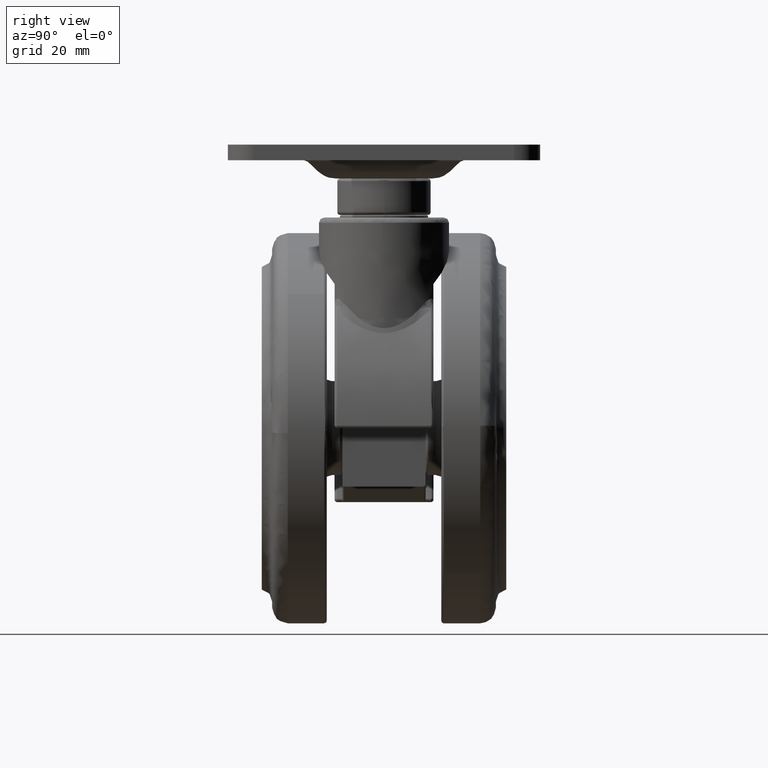
[diagram: clean part render]
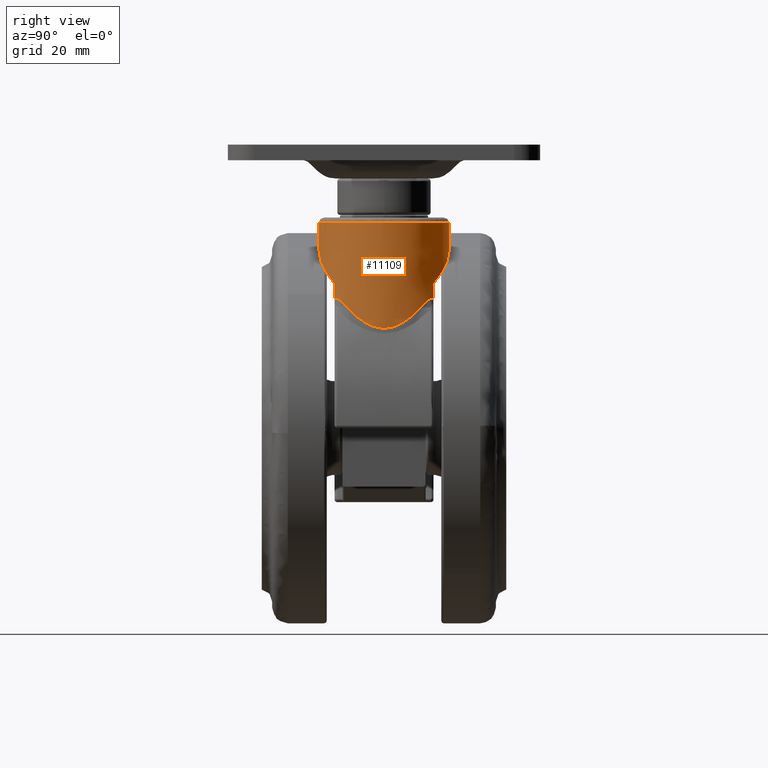
[diagram: same view with one face highlighted and labeled with its STEP entity id]
A machine part, right view. The second image highlights one B-rep face of the part: STEP entity #11109.
In plain terms, the highlighted face is a freeform B-spline surface patch.
Its self-contained STEP definition (entity closure, byte-faithful):
#10313=CARTESIAN_POINT('',(-0.210345419109388,-12.498230066879829,-0.999999999917914));
#10314=VERTEX_POINT('',#10313);
#10328=CARTESIAN_POINT('',(12.496052366040759,-0.314126193061246,-0.999999999835127));
#10329=VERTEX_POINT('',#10328);
#10330=CARTESIAN_POINT('',(12.496052366040759,-0.314126193061246,-0.999999999835127));
#10331=CARTESIAN_POINT('',(12.189723452239033,-12.499999999999973,-0.999999999836137));
#10332=CARTESIAN_POINT('',(0.0,-12.499999999999970,-0.999999999916527));
#10333=CARTESIAN_POINT('',(-0.105180156028364,-12.499999999999973,-0.999999999917221));
#10334=CARTESIAN_POINT('',(-0.210345419109388,-12.498230066879831,-0.999999999917915));
#10342=(BOUNDED_CURVE()B_SPLINE_CURVE(2,(#10330,#10331,#10332,#10333,#10334),.UNSPECIFIED.,.F.,.U.)B_SPLINE_CURVE_WITH_KNOTS((3,2,3),(0.004420108230466,0.250000000000000,0.252964611314092),.UNSPECIFIED.)CURVE()GEOMETRIC_REPRESENTATION_ITEM()RATIONAL_B_SPLINE_CURVE((0.989826157680957,0.712285260095048,1.0,0.996526741798740,0.993135858481961))REPRESENTATION_ITEM(''));
#10343=EDGE_CURVE('',#10329,#10314,#10342,.T.);
#10465=CARTESIAN_POINT('',(12.500000000000000,2.842171E-014,-1.0));
#10466=VERTEX_POINT('',#10465);
#10467=CARTESIAN_POINT('',(12.500000000000000,2.842171E-014,-1.0));
#10468=CARTESIAN_POINT('',(12.499999999999996,-0.157087901551999,-0.999999999917563));
#10469=CARTESIAN_POINT('',(12.496052366040759,-0.314126193061246,-0.999999999835127));
#10477=(BOUNDED_CURVE()B_SPLINE_CURVE(2,(#10467,#10468,#10469),.UNSPECIFIED.,.F.,.U.)B_SPLINE_CURVE_WITH_KNOTS((3,3),(0.0,0.004420108230466),.UNSPECIFIED.)CURVE()GEOMETRIC_REPRESENTATION_ITEM()RATIONAL_B_SPLINE_CURVE((1.0,0.994821521091500,0.989826157680957))REPRESENTATION_ITEM(''));
#10478=EDGE_CURVE('',#10466,#10329,#10477,.T.);
#10480=CARTESIAN_POINT('',(0.210345419109390,12.498230066879881,-0.999999999917913));
#10481=VERTEX_POINT('',#10480);
#10482=CARTESIAN_POINT('',(0.210345419109388,12.498230066879881,-0.999999999917915));
#10483=CARTESIAN_POINT('',(12.499999999999998,12.291394976655596,-0.999999999998981));
#10484=CARTESIAN_POINT('',(12.500000000000000,2.842171E-014,-1.0));
#10492=(BOUNDED_CURVE()B_SPLINE_CURVE(2,(#10482,#10483,#10484),.UNSPECIFIED.,.F.,.U.)B_SPLINE_CURVE_WITH_KNOTS((3,3),(0.752964611314092,1.0),.UNSPECIFIED.)CURVE()GEOMETRIC_REPRESENTATION_ITEM()RATIONAL_B_SPLINE_CURVE((0.993135858481961,0.710580039387808,1.0))REPRESENTATION_ITEM(''));
#10493=EDGE_CURVE('',#10481,#10466,#10492,.T.);
#10733=CARTESIAN_POINT('',(0.210345464824493,12.498232788638710,-6.561939243752726));
#10734=VERTEX_POINT('',#10733);
#10735=CARTESIAN_POINT('',(0.210345464824493,12.498232788638710,-6.561939243752726));
#10736=CARTESIAN_POINT('',(0.210345419109390,12.498230066879881,-0.999999999917913));
#10737=QUASI_UNIFORM_CURVE('',1,(#10735,#10736),.UNSPECIFIED.,.F.,.U.);
#10738=EDGE_CURVE('',#10734,#10481,#10737,.T.);
#10868=CARTESIAN_POINT('',(-0.210345464165295,-12.498232745912050,-6.314921270458395));
#10869=VERTEX_POINT('',#10868);
#10897=CARTESIAN_POINT('',(-0.210345464165295,-12.498232745912050,-6.314921270458395));
#10898=CARTESIAN_POINT('',(-0.210345419109388,-12.498230066879829,-0.999999999917914));
#10899=QUASI_UNIFORM_CURVE('',1,(#10897,#10898),.UNSPECIFIED.,.F.,.U.);
#10900=EDGE_CURVE('',#10869,#10314,#10899,.T.);
#10907=CARTESIAN_POINT('',(-0.210345418988104,-12.498230066881870,-21.771231334627650));
#10908=CARTESIAN_POINT('',(12.287884647893792,-12.708575485869972,-21.771231334627647));
#10909=CARTESIAN_POINT('',(12.498230066881900,-0.210345418988075,-21.771231334627650));
#10910=CARTESIAN_POINT('',(12.708575485869998,12.287884647893820,-21.771231334627647));
#10911=CARTESIAN_POINT('',(0.210345418988104,12.498230066881920,-21.771231334627650));
#10912=CARTESIAN_POINT('',(-0.210345418988104,-12.498230066881870,-0.480719216465309));
#10913=CARTESIAN_POINT('',(12.287884647893792,-12.708575485869972,-0.480719216465309));
#10914=CARTESIAN_POINT('',(12.498230066881900,-0.210345418988075,-0.480719216465310));
#10915=CARTESIAN_POINT('',(12.708575485869998,12.287884647893820,-0.480719216465312));
#10916=CARTESIAN_POINT('',(0.210345418988104,12.498230066881920,-0.480719216465312));
#10924=(BOUNDED_SURFACE()B_SPLINE_SURFACE(2,1,((#10907,#10912),(#10908,#10913),(#10909,#10914),(#10910,#10915),(#10911,#10916)),.UNSPECIFIED.,.F.,.F.,.U.)B_SPLINE_SURFACE_WITH_KNOTS((3,2,3),(2,2),(0.0,20.710678118654752,41.421356237309503),(0.0,21.290512118162340),.UNSPECIFIED.)GEOMETRIC_REPRESENTATION_ITEM()RATIONAL_B_SPLINE_SURFACE(((1.0,1.0),(0.707106781186548,0.707106781186548),(1.0,1.0),(0.707106781186548,0.707106781186548),(1.0,1.0)))REPRESENTATION_ITEM('')SURFACE());
#10925=ORIENTED_EDGE('',*,*,#10493,.T.);
#10926=ORIENTED_EDGE('',*,*,#10478,.T.);
#10927=ORIENTED_EDGE('',*,*,#10343,.T.);
#10928=ORIENTED_EDGE('',*,*,#10900,.F.);
#10929=CARTESIAN_POINT('',(8.124038404636170,-9.499999999999840,-12.763950104340299));
#10930=VERTEX_POINT('',#10929);
#10931=CARTESIAN_POINT('',(-0.210345464165295,-12.498232745912050,-6.314921270458395));
#10932=CARTESIAN_POINT('',(0.046688669925738,-12.502563223112819,-6.463717266949617));
#10933=CARTESIAN_POINT('',(0.301376004855072,-12.498917490826550,-6.615025582353200));
#10934=CARTESIAN_POINT('',(1.279961564212694,-12.455522032014001,-7.211317381852880));
#10935=CARTESIAN_POINT('',(1.987225241460234,-12.361174337843259,-7.674395283909064));
#10936=CARTESIAN_POINT('',(2.848662870504341,-12.172353313825489,-8.278378668188394));
#10937=CARTESIAN_POINT('',(3.020024907418457,-12.130961616131099,-8.400585281640833));
#10938=CARTESIAN_POINT('',(3.359527115123265,-12.041360412231249,-8.646798200261666));
#10939=CARTESIAN_POINT('',(3.527276741180372,-11.993265002384881,-8.770515328244699));
#10940=CARTESIAN_POINT('',(4.024726760755482,-11.839427331190590,-9.143433004633954));
#10941=CARTESIAN_POINT('',(4.348636310451784,-11.724154875031569,-9.394401833612065));
#10942=CARTESIAN_POINT('',(5.298514053780559,-11.342029424662220,-10.153789478325811));
#10943=CARTESIAN_POINT('',(5.902730168529613,-11.039182328275510,-10.668742591258241));
#10944=CARTESIAN_POINT('',(6.624379925392161,-10.601701070366500,-11.320722621267240));
#10945=CARTESIAN_POINT('',(6.767020840263738,-10.511233450999731,-11.451528870959860));
#10946=CARTESIAN_POINT('',(7.048960003187420,-10.324280356470430,-11.713877609950700));
#10947=CARTESIAN_POINT('',(7.188300769051740,-10.227755211578730,-11.845464961123460));
#10948=CARTESIAN_POINT('',(7.599767507270009,-9.930162991382993,-12.239654275979181));
#10949=CARTESIAN_POINT('',(7.865886326719730,-9.720761732060828,-12.502186838535920));
#10950=CARTESIAN_POINT('',(8.124038404636170,-9.499999999999840,-12.763950104340299));
#10951=B_SPLINE_CURVE_WITH_KNOTS('',3,(#10931,#10932,#10933,#10934,#10935,#10936,#10937,#10938,#10939,#10940,#10941,#10942,#10943,#10944,#10945,#10946,#10947,#10948,#10949,#10950),.UNSPECIFIED.,.F.,.U.,(4,2,2,2,2,2,2,2,2,4),(0.456554544227998,0.500000000000001,0.625000000000001,0.656250000000001,0.687500000000001,0.750000000000001,0.875000000000000,0.906250000000000,0.937500000000000,1.0),.UNSPECIFIED.);
#10952=EDGE_CURVE('',#10869,#10930,#10951,.T.);
#10953=ORIENTED_EDGE('',*,*,#10952,.T.);
#10954=CARTESIAN_POINT('',(8.124038404636160,-9.499999999999801,-15.712838451109050));
#10955=VERTEX_POINT('',#10954);
#10956=CARTESIAN_POINT('',(8.124038404636170,-9.499999999999840,-12.763950104340299));
#10957=CARTESIAN_POINT('',(8.124038404636160,-9.499999999999801,-15.712838451109050));
#10958=QUASI_UNIFORM_CURVE('',1,(#10956,#10957),.UNSPECIFIED.,.F.,.U.);
#10959=EDGE_CURVE('',#10930,#10955,#10958,.T.);
#10960=ORIENTED_EDGE('',*,*,#10959,.T.);
#10961=CARTESIAN_POINT('',(9.800704311122601,-7.758620689654999,-16.494848053722400));
#10962=VERTEX_POINT('',#10961);
#10963=CARTESIAN_POINT('',(8.124038404636160,-9.499999999999801,-15.712838451109050));
#10964=CARTESIAN_POINT('',(8.200056996387302,-9.434991793804793,-15.657000079892329));
#10965=CARTESIAN_POINT('',(8.280236414711153,-9.364840259450533,-15.619856044924051));
#10966=CARTESIAN_POINT('',(8.384300480074323,-9.271153634815811,-15.593045069625070));
#10967=CARTESIAN_POINT('',(8.405245227154264,-9.252169682244603,-15.588700124077491));
#10968=CARTESIAN_POINT('',(8.446798399380818,-9.214249180365350,-15.581996168592941));
#10969=CARTESIAN_POINT('',(8.467492043779751,-9.195236099098793,-15.579614039939081));
#10970=CARTESIAN_POINT('',(8.529329856914192,-9.138035123073539,-15.575120671623470));
#10971=CARTESIAN_POINT('',(8.570231152781400,-9.099685335955268,-15.575650790731521));
#10972=CARTESIAN_POINT('',(8.651408704842456,-9.022541917180572,-15.582757370607361));
#10973=CARTESIAN_POINT('',(8.691684860706065,-8.983748355229512,-15.589338693499940));
#10974=CARTESIAN_POINT('',(8.771627840160782,-8.905709700053796,-15.607875553175500));
#10975=CARTESIAN_POINT('',(8.811253347426510,-8.866499001752963,-15.619852877914720));
#10976=CARTESIAN_POINT('',(8.927105973631964,-8.750356526338241,-15.662167106236870));
#10977=CARTESIAN_POINT('',(9.001149884090731,-8.674105196032567,-15.698975363985470));
#10978=CARTESIAN_POINT('',(9.108382891154648,-8.560961462069976,-15.764151556417641));
#10979=CARTESIAN_POINT('',(9.143482034807141,-8.523457020210431,-15.787559302776231));
#10980=CARTESIAN_POINT('',(9.212492856972682,-8.448819956446142,-15.837440999139570));
#10981=CARTESIAN_POINT('',(9.246327405067838,-8.411768487184277,-15.863869453558600));
#10982=CARTESIAN_POINT('',(9.345200407928450,-8.302223051113186,-15.946506472107570));
#10983=CARTESIAN_POINT('',(9.407971066648200,-8.230952259817251,-16.006288610242098));
#10984=CARTESIAN_POINT('',(9.588495491993044,-8.021516875077420,-16.197272233662112));
#10985=CARTESIAN_POINT('',(9.698539738479676,-7.887675170805309,-16.339983511442270));
#10986=CARTESIAN_POINT('',(9.800704311122601,-7.758620689654991,-16.494848053722400));
#10987=B_SPLINE_CURVE_WITH_KNOTS('',3,(#10963,#10964,#10965,#10966,#10967,#10968,#10969,#10970,#10971,#10972,#10973,#10974,#10975,#10976,#10977,#10978,#10979,#10980,#10981,#10982,#10983,#10984,#10985,#10986),.UNSPECIFIED.,.F.,.U.,(4,2,2,2,2,2,2,2,2,2,2,4),(0.0,0.124999999999995,0.156249999999994,0.187499999999994,0.249999999999994,0.312499999999993,0.374999999999992,0.499999999999993,0.562499999999993,0.624999999999993,0.749999999999996,1.0),.UNSPECIFIED.);
#10988=EDGE_CURVE('',#10955,#10962,#10987,.T.);
#10989=ORIENTED_EDGE('',*,*,#10988,.T.);
#10990=CARTESIAN_POINT('',(9.800704311122360,7.758620689655350,-16.494848053722048));
#10991=VERTEX_POINT('',#10990);
#10992=CARTESIAN_POINT('',(9.800704311122601,-7.758620689654999,-16.494848053722400));
#10993=CARTESIAN_POINT('',(9.986707087611308,-7.523661631037242,-16.776797403664212));
#10994=CARTESIAN_POINT('',(10.165844132897430,-7.279997950284919,-17.056252337182549));
#10995=CARTESIAN_POINT('',(10.508322965032709,-6.776275197561249,-17.604786231683889));
#10996=CARTESIAN_POINT('',(10.671910093621010,-6.515949520881597,-17.874231843661260));
#10997=CARTESIAN_POINT('',(10.983571075311540,-5.975653072140882,-18.400619150000651));
#10998=CARTESIAN_POINT('',(11.131653040221250,-5.695706632649594,-18.657582823657670));
#10999=CARTESIAN_POINT('',(11.411517158175970,-5.111951643133098,-19.154834979763400));
#11000=CARTESIAN_POINT('',(11.543317238524381,-4.808192548108898,-19.395167292103832));
#11001=CARTESIAN_POINT('',(11.696795247947939,-4.409340818720976,-19.681139563171779));
#11002=CARTESIAN_POINT('',(11.726924014512040,-4.328604081846671,-19.737604143342349));
#11003=CARTESIAN_POINT('',(11.786005234840619,-4.165049908924077,-19.848936044424960));
#11004=CARTESIAN_POINT('',(11.814957402350920,-4.082221713592210,-19.903804016465990));
#11005=CARTESIAN_POINT('',(11.899458607560630,-3.831957071799351,-20.064789427935182));
#11006=CARTESIAN_POINT('',(11.952836298374001,-3.662256524070719,-20.167634681594329));
#11007=CARTESIAN_POINT('',(12.103619622892150,-3.143575308409699,-20.460871230133790));
#11008=CARTESIAN_POINT('',(12.191760858152691,-2.785120383891056,-20.636140376215149));
#11009=CARTESIAN_POINT('',(12.302249911155640,-2.222865092005873,-20.858650156466432));
#11010=CARTESIAN_POINT('',(12.335440511342650,-2.031327839554900,-20.926048373057011));
#11011=CARTESIAN_POINT('',(12.379141350123019,-1.736866656894137,-21.015261324131199));
#11012=CARTESIAN_POINT('',(12.392705884098280,-1.637346349929151,-21.043042960965661));
#11013=CARTESIAN_POINT('',(12.417387050702670,-1.438249294257478,-21.093712265269890));
#11014=CARTESIAN_POINT('',(12.428548754780611,-1.338397423100053,-21.116691594596549));
#11015=CARTESIAN_POINT('',(12.478403538779681,-0.837588274322451,-21.219521246843630));
#11016=CARTESIAN_POINT('',(12.499292307738219,-0.431981676063675,-21.263143559386961));
#11017=CARTESIAN_POINT('',(12.500154898459179,0.081760547932292,-21.264938210031939));
#11018=CARTESIAN_POINT('',(12.499061373036181,0.184845676848764,-21.262662377708129));
#11019=CARTESIAN_POINT('',(12.494289586236830,0.391702522877762,-21.252739158089732));
#11020=CARTESIAN_POINT('',(12.490589051346880,0.495810159600948,-21.245045538059738));
#11021=CARTESIAN_POINT('',(12.475761969069421,0.804943194939986,-21.214259822812711));
#11022=CARTESIAN_POINT('',(12.460928355503670,1.007759379935949,-21.183495435123291));
#11023=CARTESIAN_POINT('',(12.402735933774490,1.607295602070802,-21.063418007864151));
#11024=CARTESIAN_POINT('',(12.345753638523490,1.995135823557409,-20.946413175912070));
#11025=CARTESIAN_POINT('',(12.236125627494109,2.562085008849558,-20.725419488413952));
#11026=CARTESIAN_POINT('',(12.195430095788479,2.748978651970769,-20.643937127602172));
#11027=CARTESIAN_POINT('',(12.107170861737011,3.114773278259714,-20.468907227954318));
#11028=CARTESIAN_POINT('',(12.059774979138581,3.293121407276401,-20.375691313386810));
#11029=CARTESIAN_POINT('',(11.909022524828099,3.815293842577840,-20.082269055347400));
#11030=CARTESIAN_POINT('',(11.797018397354281,4.146929869341823,-19.868142783973589));
#11031=CARTESIAN_POINT('',(11.552948168786470,4.784982655986133,-19.412871039128738));
#11032=CARTESIAN_POINT('',(11.420836685064220,5.091380912128890,-19.171631008511230));
#11033=CARTESIAN_POINT('',(11.137988976801790,5.683561535862960,-18.668615624393961));
#11034=CARTESIAN_POINT('',(10.988576638448720,5.966577109971742,-18.409189879665831));
#11035=CARTESIAN_POINT('',(10.674710048190709,6.511484034792383,-17.878847291077012));
#11036=CARTESIAN_POINT('',(10.510246207470640,6.773343577811856,-17.607905182675289));
#11037=CARTESIAN_POINT('',(10.166570135112201,7.279032233242329,-17.057376865766361));
#11038=CARTESIAN_POINT('',(9.987353552618062,7.522845015219603,-16.777777337361211));
#11039=CARTESIAN_POINT('',(9.800704311122360,7.758620689655350,-16.494848053722048));
#11040=B_SPLINE_CURVE_WITH_KNOTS('',3,(#10992,#10993,#10994,#10995,#10996,#10997,#10998,#10999,#11000,#11001,#11002,#11003,#11004,#11005,#11006,#11007,#11008,#11009,#11010,#11011,#11012,#11013,#11014,#11015,#11016,#11017,#11018,#11019,#11020,#11021,#11022,#11023,#11024,#11025,#11026,#11027,#11028,#11029,#11030,#11031,#11032,#11033,#11034,#11035,#11036,#11037,#11038,#11039),.UNSPECIFIED.,.F.,.U.,(4,2,2,2,2,2,2,2,2,2,2,2,2,2,2,2,2,2,2,2,2,2,2,4),(0.0,0.062500000000000,0.125000000000000,0.187500000000000,0.250000000000001,0.265625000000001,0.281250000000001,0.312500000000001,0.375000000000001,0.406250000000001,0.421875000000001,0.437500000000001,0.500000000000001,0.515625000000001,0.531250000000001,0.562500000000001,0.625000000000001,0.656250000000001,0.687500000000001,0.750000000000001,0.812500000000001,0.875000000000000,0.937500000000000,1.0),.UNSPECIFIED.);
#11041=EDGE_CURVE('',#10962,#10991,#11040,.T.);
#11042=ORIENTED_EDGE('',*,*,#11041,.T.);
#11043=CARTESIAN_POINT('',(8.124038404635760,9.500000000000199,-15.712838451108601));
#11044=VERTEX_POINT('',#11043);
#11045=CARTESIAN_POINT('',(9.800704311122360,7.758620689655350,-16.494848053722048));
#11046=CARTESIAN_POINT('',(9.749628541969146,7.823139697731260,-16.417425661527808));
#11047=CARTESIAN_POINT('',(9.696402000790538,7.889071206064559,-16.342842591273129));
#11048=CARTESIAN_POINT('',(9.585010175891297,8.024041137939907,-16.200073557091670));
#11049=CARTESIAN_POINT('',(9.526942741277560,8.092952469072129,-16.132045528641829));
#11050=CARTESIAN_POINT('',(9.406405323305133,8.232742954564950,-16.004742534557749));
#11051=CARTESIAN_POINT('',(9.343814516306079,8.303772122791729,-15.945290339160611));
#11052=CARTESIAN_POINT('',(9.213181797435743,8.448478108498831,-15.836225222531141));
#11053=CARTESIAN_POINT('',(9.145151959501575,8.522146012568681,-15.786586533442520));
#11054=CARTESIAN_POINT('',(9.038048625972023,8.635182180477992,-15.721360040231909));
#11055=CARTESIAN_POINT('',(9.001423454305257,8.673365039993247,-15.701129641260581));
#11056=CARTESIAN_POINT('',(8.926549775427752,8.750405386466660,-15.664436144388960));
#11057=CARTESIAN_POINT('',(8.888621915334914,8.788934280320898,-15.648123716838260));
#11058=CARTESIAN_POINT('',(8.773253878926866,8.904598684173314,-15.605948826880770));
#11059=CARTESIAN_POINT('',(8.694251179670324,8.981796397535121,-15.586697494306600));
#11060=CARTESIAN_POINT('',(8.592277701996718,9.078741970842872,-15.577536102474181));
#11061=CARTESIAN_POINT('',(8.571720257047559,9.098154742558842,-15.576460997286061));
#11062=CARTESIAN_POINT('',(8.530255882424589,9.137042325883481,-15.575981589042820));
#11063=CARTESIAN_POINT('',(8.509288592144761,9.156572153507099,-15.576586933214029));
#11064=CARTESIAN_POINT('',(8.446769774174982,9.214407423661521,-15.581100067919790));
#11065=CARTESIAN_POINT('',(8.405353219985269,9.252193925368349,-15.587673610532139));
#11066=CARTESIAN_POINT('',(8.323201598920305,9.326165896501642,-15.608734982643490));
#11067=CARTESIAN_POINT('',(8.282465708727768,9.362351910037468,-15.623217916685491));
#11068=CARTESIAN_POINT('',(8.222035118779226,9.415352164495490,-15.651744198386320));
#11069=CARTESIAN_POINT('',(8.201934816933395,9.432865247340679,-15.662435637003480));
#11070=CARTESIAN_POINT('',(8.162462957021443,9.467041776128621,-15.685992804854340));
#11071=CARTESIAN_POINT('',(8.143070702077418,9.483724303648147,-15.698858548756100));
#11072=CARTESIAN_POINT('',(8.124038404635790,9.500000000000171,-15.712838451108549));
#11073=B_SPLINE_CURVE_WITH_KNOTS('',3,(#11045,#11046,#11047,#11048,#11049,#11050,#11051,#11052,#11053,#11054,#11055,#11056,#11057,#11058,#11059,#11060,#11061,#11062,#11063,#11064,#11065,#11066,#11067,#11068,#11069,#11070,#11071,#11072),.UNSPECIFIED.,.F.,.U.,(4,2,2,2,2,2,2,2,2,2,2,2,2,4),(0.0,0.125000000000001,0.250000000000003,0.375000000000004,0.500000000000005,0.562500000000006,0.625000000000007,0.750000000000008,0.781250000000007,0.812500000000007,0.875000000000005,0.937500000000003,0.968750000000001,1.0),.UNSPECIFIED.);
#11074=EDGE_CURVE('',#10991,#11044,#11073,.T.);
#11075=ORIENTED_EDGE('',*,*,#11074,.T.);
#11076=CARTESIAN_POINT('',(8.124038404635760,9.500000000000290,-12.763950104339900));
#11077=VERTEX_POINT('',#11076);
#11078=CARTESIAN_POINT('',(8.124038404635760,9.500000000000290,-12.763950104339900));
#11079=CARTESIAN_POINT('',(8.124038404635760,9.500000000000199,-15.712838451108601));
#11080=QUASI_UNIFORM_CURVE('',1,(#11078,#11079),.UNSPECIFIED.,.F.,.U.);
#11081=EDGE_CURVE('',#11077,#11044,#11080,.T.);
#11082=ORIENTED_EDGE('',*,*,#11081,.F.);
#11083=CARTESIAN_POINT('',(0.210345464824493,12.498232788638710,-6.561939243752726));
#11084=CARTESIAN_POINT('',(0.325292011602956,12.496296275866859,-6.630390871382786));
#11085=CARTESIAN_POINT('',(0.439766037507278,12.492780416375041,-6.699352284955499));
#11086=CARTESIAN_POINT('',(1.279961485365446,12.455521892246329,-7.211317381864225));
#11087=CARTESIAN_POINT('',(1.987225169704762,12.361174209952660,-7.674395283919355));
#11088=CARTESIAN_POINT('',(2.848662807762349,12.172353201310850,-8.278378668197338));
#11089=CARTESIAN_POINT('',(3.020024846488890,12.130961506722180,-8.400585281649503));
#11090=CARTESIAN_POINT('',(3.359527057823055,12.041360309068770,-8.646798200269785));
#11091=CARTESIAN_POINT('',(3.527276685692855,11.993264902355810,-8.770515328252561));
#11092=CARTESIAN_POINT('',(4.024726710700307,11.839427240591339,-9.143433004641004));
#11093=CARTESIAN_POINT('',(4.348636264010523,11.724154790758201,-9.394401833618584));
#11094=CARTESIAN_POINT('',(5.298514018159263,11.342029359478440,-10.153789478330729));
#11095=CARTESIAN_POINT('',(5.902730140092761,11.039182275966610,-10.668742591262079));
#11096=CARTESIAN_POINT('',(6.624379905901195,10.601701034329720,-11.320722621269740));
#11097=CARTESIAN_POINT('',(6.767020822560204,10.511233418226359,-11.451528870962100));
#11098=CARTESIAN_POINT('',(7.048959989055244,10.324280330241949,-11.713877609952410));
#11099=CARTESIAN_POINT('',(7.188300756704076,10.227755188632850,-11.845464961124909));
#11100=CARTESIAN_POINT('',(7.599767500249936,9.930162978274051,-12.239654275979840));
#11101=CARTESIAN_POINT('',(7.865886323223509,9.720761725507709,-12.502186838536041));
#11102=CARTESIAN_POINT('',(8.124038404635760,9.500000000000290,-12.763950104339900));
#11103=B_SPLINE_CURVE_WITH_KNOTS('',3,(#11083,#11084,#11085,#11086,#11087,#11088,#11089,#11090,#11091,#11092,#11093,#11094,#11095,#11096,#11097,#11098,#11099,#11100,#11101,#11102),.UNSPECIFIED.,.F.,.U.,(4,2,2,2,2,2,2,2,2,4),(0.480375850949642,0.500000000000002,0.625000000000002,0.656250000000002,0.687500000000002,0.750000000000001,0.875000000000001,0.906250000000001,0.937500000000000,1.0),.UNSPECIFIED.);
#11104=EDGE_CURVE('',#10734,#11077,#11103,.T.);
#11105=ORIENTED_EDGE('',*,*,#11104,.F.);
#11106=ORIENTED_EDGE('',*,*,#10738,.T.);
#11107=EDGE_LOOP('',(#10925,#10926,#10927,#10928,#10953,#10960,#10989,#11042,#11075,#11082,#11105,#11106));
#11108=FACE_OUTER_BOUND('',#11107,.T.);
#11109=ADVANCED_FACE('',(#11108),#10924,.T.);